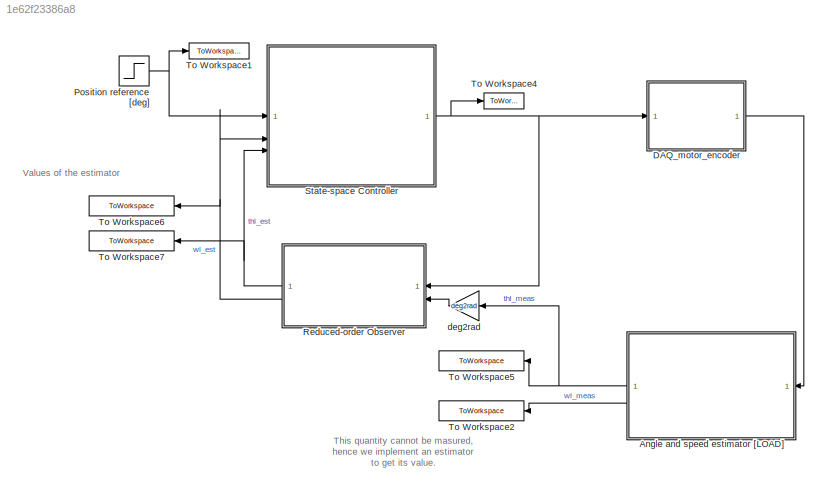
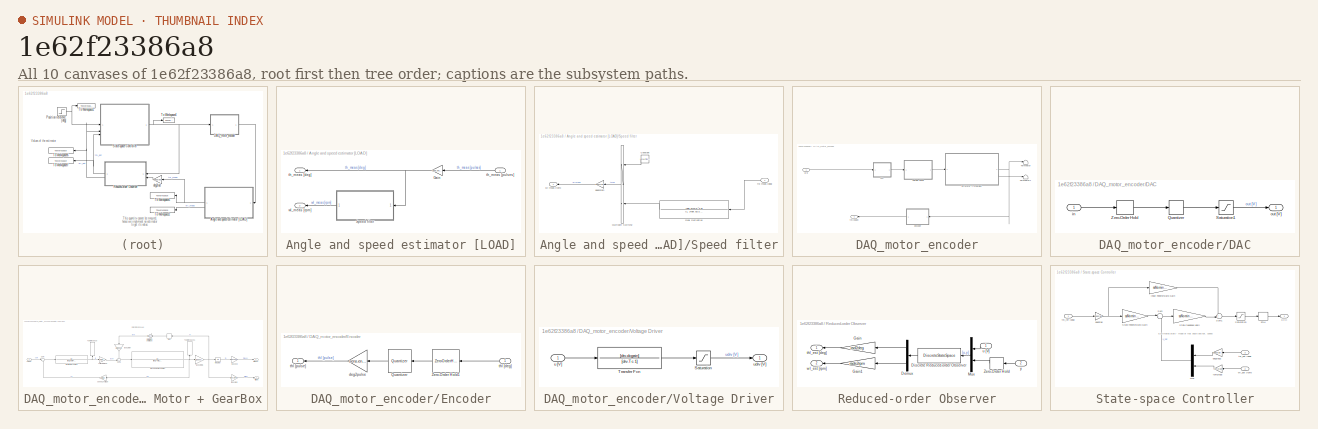
[diagram: thumbnail index - all 10 canvases of the model, root first then tree order]
MODEL slx_1e62f23386a8
KIND model
CONFIG AbsTol = auto
CONFIG EnableMultiTasking = off
CONFIG FixedStep = auto
CONFIG MaxStep = auto
CONFIG MinStep = auto
CONFIG RelTol = 1e-3
CONFIG SampleTimeConstraint = Unconstrained
CONFIG SolverName = VariableStepAuto
CONFIG StartTime = 0.0
CONFIG StopTime = 10.0
BLOCK [SubSystem] Angle and speed estimator [LOAD]
  NameLocation = top
BLOCK [Gain] Angle and speed estimator [LOAD]/Gain
  Gain = sens.enc.pulse2deg
  NameLocation = top
BLOCK [SubSystem] Angle and speed estimator [LOAD]/Speed filter
  NameLocation = top
BLOCK [Constant] Angle and speed estimator [LOAD]/Speed filter/Constant
  NameLocation = top
  Value = simul.filtselect
BLOCK [MultiPortSwitch] Angle and speed estimator [LOAD]/Speed filter/Multiport Switch2
  InputSameDT = off
  Inputs = 2
  NameLocation = top
  SaturateOnIntegerOverflow = off
BLOCK [TransferFcn] Angle and speed estimator [LOAD]/Speed filter/Real Derivative
  Denominator = [1, 2*der.dSS*der.wcSS, der.wcSS^2]
  NameLocation = top
  Numerator = [der.wcSS^2 0]
BLOCK [Gain] Angle and speed estimator [LOAD]/Speed filter/degs2rpm
  Gain = degs2rpm
BLOCK [Inport] Angle and speed estimator [LOAD]/Speed filter/thl-meas [deg]
BLOCK [Outport] Angle and speed estimator [LOAD]/Speed filter/wl-meas [rpm]
BLOCK [Outport] Angle and speed estimator [LOAD]/th_meas [deg]
BLOCK [Inport] Angle and speed estimator [LOAD]/th_meas [pulses]
  NameLocation = top
BLOCK [Outport] Angle and speed estimator [LOAD]/wl_meas [rpm]
  Port = 2
BLOCK [SubSystem] DAQ_motor_encoder
BLOCK [SubSystem] DAQ_motor_encoder/DAC
BLOCK [Quantizer] DAQ_motor_encoder/DAC/Quantizer
  QuantizationInterval = daq.dac.q
BLOCK [Saturate] DAQ_motor_encoder/DAC/Saturation1
  LowerLimit = -10
  UpperLimit = 10
BLOCK [ZeroOrderHold] DAQ_motor_encoder/DAC/Zero-Order Hold
  SampleTime = 0.001
BLOCK [Inport] DAQ_motor_encoder/DAC/in
BLOCK [Outport] DAQ_motor_encoder/DAC/out [V]
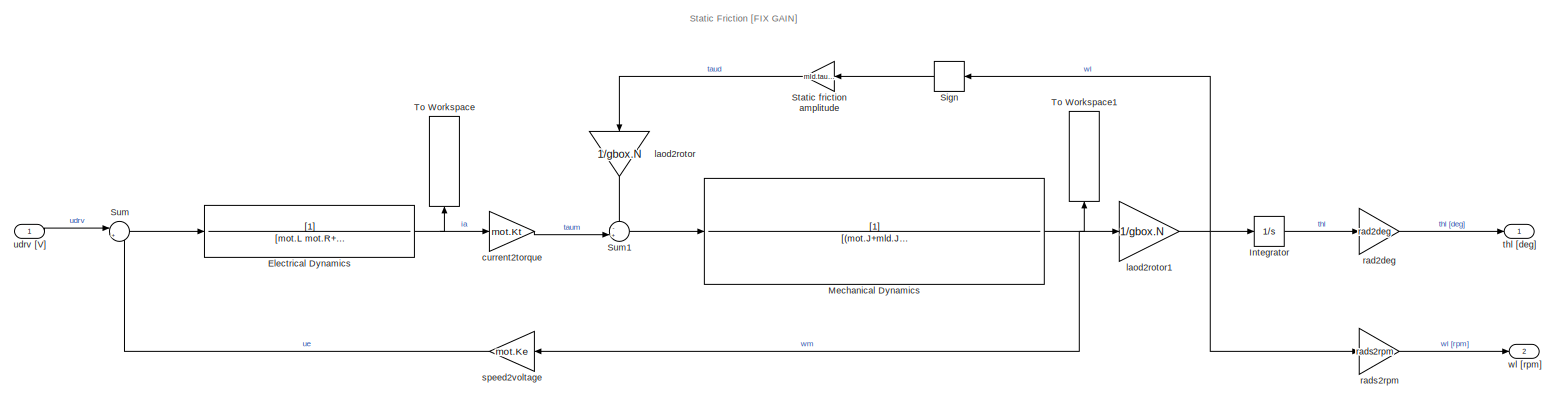
[diagram: DAQ_motor_encoder/DC Motor + GearBox - part 1/1, most of the canvas]
BLOCK [SubSystem] DAQ_motor_encoder/DC Motor + GearBox
BLOCK [TransferFcn] DAQ_motor_encoder/DC Motor + GearBox/Electrical Dynamics
  Denominator = [mot.L mot.R+sens.curr.Rs]
BLOCK [Integrator] DAQ_motor_encoder/DC Motor + GearBox/Integrator
BLOCK [TransferFcn] DAQ_motor_encoder/DC Motor + GearBox/Mechanical Dynamics
  Denominator = [(mot.J+mld.J/gbox.N^2) (mot.B+mld.B/gbox.N^2)]
BLOCK [Signum] DAQ_motor_encoder/DC Motor + GearBox/Sign
  NameLocation = top
  ZeroCross = off
BLOCK [Gain] DAQ_motor_encoder/DC Motor + GearBox/Static friction amplitude
  Gain = mld.tausf
  NameLocation = top
BLOCK [Sum] DAQ_motor_encoder/DC Motor + GearBox/Sum
  Inputs = |+-
BLOCK [Sum] DAQ_motor_encoder/DC Motor + GearBox/Sum1
  Inputs = -+|
BLOCK [ToWorkspace] DAQ_motor_encoder/DC Motor + GearBox/To Workspace
  FixptAsFi = on
  MaxDataPoints = inf
  NameLocation = right
  SampleTime = -1
  SaveFormat = Timeseries
  VariableName = ia
BLOCK [ToWorkspace] DAQ_motor_encoder/DC Motor + GearBox/To Workspace1
  FixptAsFi = on
  MaxDataPoints = inf
  NameLocation = right
  SampleTime = -1
  SaveFormat = Timeseries
  VariableName = wm
BLOCK [Gain] DAQ_motor_encoder/DC Motor + GearBox/current2torque
  Gain = mot.Kt
BLOCK [Gain] DAQ_motor_encoder/DC Motor + GearBox/laod2rotor
  Gain = 1/gbox.N
  NameLocation = left
BLOCK [Gain] DAQ_motor_encoder/DC Motor + GearBox/laod2rotor1
  Gain = 1/gbox.N
BLOCK [Gain] DAQ_motor_encoder/DC Motor + GearBox/rad2deg
  Gain = rad2deg
BLOCK [Gain] DAQ_motor_encoder/DC Motor + GearBox/rads2rpm
  Gain = rads2rpm
BLOCK [Gain] DAQ_motor_encoder/DC Motor + GearBox/speed2voltage
  Gain = mot.Ke
  NameLocation = top
BLOCK [Outport] DAQ_motor_encoder/DC Motor + GearBox/thl [deg]
BLOCK [Inport] DAQ_motor_encoder/DC Motor + GearBox/udrv [V]
BLOCK [Outport] DAQ_motor_encoder/DC Motor + GearBox/wl [rpm]
  Port = 2
BLOCK [SubSystem] DAQ_motor_encoder/Encoder
  NameLocation = top
BLOCK [Quantizer] DAQ_motor_encoder/Encoder/Quantizer
  NameLocation = top
  QuantizationInterval = sens.enc.pulse2deg
BLOCK [ZeroOrderHold] DAQ_motor_encoder/Encoder/Zero-Order Hold1
  NameLocation = top
  SampleTime = 0.001
BLOCK [Gain] DAQ_motor_encoder/Encoder/deg2pulse
  Gain = sens.enc.deg2pulse
BLOCK [Inport] DAQ_motor_encoder/Encoder/thl [deg]
BLOCK [Outport] DAQ_motor_encoder/Encoder/thl [pulse]
BLOCK [Terminator] DAQ_motor_encoder/Terminator
BLOCK [Terminator] DAQ_motor_encoder/Terminator1
BLOCK [SubSystem] DAQ_motor_encoder/Voltage Driver
BLOCK [Saturate] DAQ_motor_encoder/Voltage Driver/Saturation
  LowerLimit = -12
  UpperLimit = 12
BLOCK [TransferFcn] DAQ_motor_encoder/Voltage Driver/Transfer Fcn
  Denominator = [drv.Tc 1]
  Numerator = [drv.dcgain]
BLOCK [Inport] DAQ_motor_encoder/Voltage Driver/u [V]
BLOCK [Outport] DAQ_motor_encoder/Voltage Driver/udrv [V]
BLOCK [Outport] DAQ_motor_encoder/thl [pulse]
BLOCK [Inport] DAQ_motor_encoder/u[V]
BLOCK [Step] Position reference [deg]
  After = simul.stepdeg
BLOCK [SubSystem] Reduced-order Observer
  NameLocation = top
BLOCK [Demux] Reduced-order Observer/Demux
  NameLocation = top
  Outputs = 2
BLOCK [DiscreteStateSpace] Reduced-order Observer/Discrete Reduced-order Observer
  A = redObs.Ph0
  B = redObs.Gamma0
  C = redObs.H0
  D = redObs.J0
  SampleTime = T(simul.Ts_selector)
BLOCK [Gain] Reduced-order Observer/Gain
  Gain = rad2deg
BLOCK [Gain] Reduced-order Observer/Gain1
  Gain = rads2rpm
BLOCK [Mux] Reduced-order Observer/Mux
  DisplayOption = bar
  Inputs = 2
  NameLocation = top
BLOCK [ZeroOrderHold] Reduced-order Observer/Zero-Order Hold
  SampleTime = T(simul.Ts_selector)
BLOCK [Outport] Reduced-order Observer/thl_est [deg]
BLOCK [Inport] Reduced-order Observer/u [V]
BLOCK [Outport] Reduced-order Observer/wl_est [rpm]
  Port = 2
BLOCK [Inport] Reduced-order Observer/y
  Port = 2
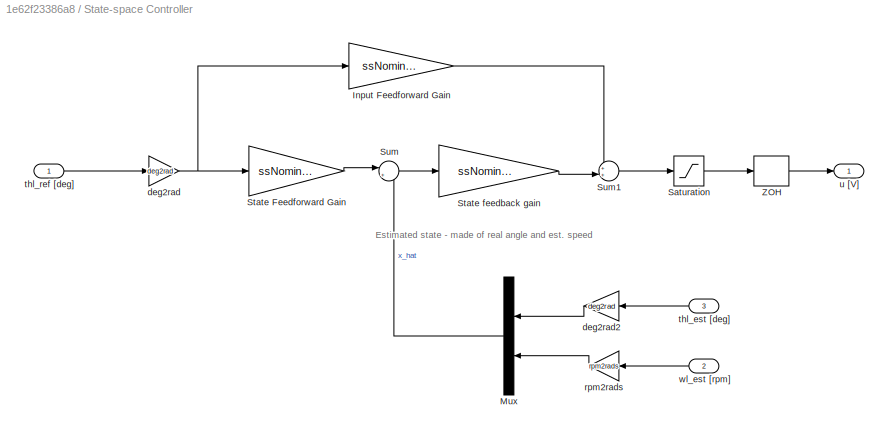
BLOCK [SubSystem] State-space Controller
BLOCK [Gain] State-space Controller/Input Feedforward Gain
  Gain = ssNominal.Nu
BLOCK [Mux] State-space Controller/Mux
  DisplayOption = signals
  Inputs = 2
  NameLocation = top
BLOCK [Saturate] State-space Controller/Saturation
  LowerLimit = -10
  UpperLimit = 10
BLOCK [Gain] State-space Controller/State Feedforward Gain
  Gain = ssNominal.Nx
BLOCK [Gain] State-space Controller/State feedback gain
  Gain = ssNominal.K
  Multiplication = Matrix(K*u)
BLOCK [Sum] State-space Controller/Sum
  Inputs = |+-
BLOCK [Sum] State-space Controller/Sum1
  Inputs = ++|
BLOCK [ZeroOrderHold] State-space Controller/ZOH 
  SampleTime = T(simul.Ts_selector)
BLOCK [Gain] State-space Controller/deg2rad
  Gain = deg2rad
BLOCK [Gain] State-space Controller/deg2rad2
  Gain = deg2rad
  NameLocation = top
BLOCK [Gain] State-space Controller/rpm2rads
  Gain = rpm2rads
  NameLocation = top
BLOCK [Inport] State-space Controller/thl_est [deg]
  NameLocation = top
  Port = 3
BLOCK [Inport] State-space Controller/thl_ref [deg]
BLOCK [Outport] State-space Controller/u [V]
BLOCK [Inport] State-space Controller/wl_est [rpm]
  NameLocation = top
  Port = 2
BLOCK [ToWorkspace] To Workspace1
  FixptAsFi = on
  MaxDataPoints = inf
  SampleTime = Ts
  SaveFormat = Structure With Time
  VariableName = thref
BLOCK [ToWorkspace] To Workspace2
  FixptAsFi = on
  MaxDataPoints = inf
  NameLocation = top
  SampleTime = Ts
  SaveFormat = Structure With Time
  VariableName = wl_meas
BLOCK [ToWorkspace] To Workspace4
  FixptAsFi = on
  MaxDataPoints = inf
  SampleTime = Ts
  SaveFormat = Structure With Time
  VariableName = u
BLOCK [ToWorkspace] To Workspace5
  FixptAsFi = on
  MaxDataPoints = inf
  NameLocation = top
  SampleTime = Ts
  SaveFormat = Structure With Time
  VariableName = thl_meas
BLOCK [ToWorkspace] To Workspace6
  FixptAsFi = on
  MaxDataPoints = inf
  NameLocation = top
  SampleTime = Ts
  SaveFormat = Structure With Time
  VariableName = wl_est
BLOCK [ToWorkspace] To Workspace7
  FixptAsFi = on
  MaxDataPoints = inf
  NameLocation = top
  SampleTime = Ts
  SaveFormat = Structure With Time
  VariableName = thl_est
BLOCK [Gain] deg2rad
  Gain = deg2rad
ANNOTATION (root): This quantity cannot be masured, hence we implement an estimator to get its value.
ANNOTATION (root): Values of the estimator
ANNOTATION DAQ_motor_encoder/DC Motor + GearBox: Static Friction [FIX GAIN]
ANNOTATION State-space Controller: Estimated state - made of real angle and est. speed
NET Angle and speed estimator [LOAD]/Gain:1 -> Angle and speed estimator [LOAD]/Speed filter:1, Angle and speed estimator [LOAD]/th_meas [deg]:1
LINE Angle and speed estimator [LOAD]/Speed filter/Constant:1 -> Angle and speed estimator [LOAD]/Speed filter/Multiport Switch2:1
LINE Angle and speed estimator [LOAD]/Speed filter/Multiport Switch2:1 -> Angle and speed estimator [LOAD]/Speed filter/degs2rpm:1
LINE Angle and speed estimator [LOAD]/Speed filter/Real Derivative:1 -> Angle and speed estimator [LOAD]/Speed filter/Multiport Switch2:3
LINE Angle and speed estimator [LOAD]/Speed filter/degs2rpm:1 -> Angle and speed estimator [LOAD]/Speed filter/wl-meas [rpm]:1
LINE Angle and speed estimator [LOAD]/Speed filter/thl-meas [deg]:1 -> Angle and speed estimator [LOAD]/Speed filter/Real Derivative:1
LINE Angle and speed estimator [LOAD]/Speed filter:1 -> Angle and speed estimator [LOAD]/wl_meas [rpm]:1
LINE Angle and speed estimator [LOAD]/th_meas [pulses]:1 -> Angle and speed estimator [LOAD]/Gain:1
NET Angle and speed estimator [LOAD]:1 -> To Workspace5:1, deg2rad:1
LINE Angle and speed estimator [LOAD]:2 -> To Workspace2:1
LINE DAQ_motor_encoder/DAC/Quantizer:1 -> DAQ_motor_encoder/DAC/Saturation1:1
LINE DAQ_motor_encoder/DAC/Saturation1:1 -> DAQ_motor_encoder/DAC/out [V]:1
LINE DAQ_motor_encoder/DAC/Zero-Order Hold:1 -> DAQ_motor_encoder/DAC/Quantizer:1
LINE DAQ_motor_encoder/DAC/in:1 -> DAQ_motor_encoder/DAC/Zero-Order Hold:1
LINE DAQ_motor_encoder/DAC:1 -> DAQ_motor_encoder/Voltage Driver:1
NET DAQ_motor_encoder/DC Motor + GearBox/Electrical Dynamics:1 -> DAQ_motor_encoder/DC Motor + GearBox/To Workspace:1, DAQ_motor_encoder/DC Motor + GearBox/current2torque:1
LINE DAQ_motor_encoder/DC Motor + GearBox/Integrator:1 -> DAQ_motor_encoder/DC Motor + GearBox/rad2deg:1
NET DAQ_motor_encoder/DC Motor + GearBox/Mechanical Dynamics:1 -> DAQ_motor_encoder/DC Motor + GearBox/To Workspace1:1, DAQ_motor_encoder/DC Motor + GearBox/laod2rotor1:1, DAQ_motor_encoder/DC Motor + GearBox/speed2voltage:1
LINE DAQ_motor_encoder/DC Motor + GearBox/Sign:1 -> DAQ_motor_encoder/DC Motor + GearBox/Static friction amplitude:1
LINE DAQ_motor_encoder/DC Motor + GearBox/Static friction amplitude:1 -> DAQ_motor_encoder/DC Motor + GearBox/laod2rotor:1
LINE DAQ_motor_encoder/DC Motor + GearBox/Sum1:1 -> DAQ_motor_encoder/DC Motor + GearBox/Mechanical Dynamics:1
LINE DAQ_motor_encoder/DC Motor + GearBox/Sum:1 -> DAQ_motor_encoder/DC Motor + GearBox/Electrical Dynamics:1
LINE DAQ_motor_encoder/DC Motor + GearBox/current2torque:1 -> DAQ_motor_encoder/DC Motor + GearBox/Sum1:2
NET DAQ_motor_encoder/DC Motor + GearBox/laod2rotor1:1 -> DAQ_motor_encoder/DC Motor + GearBox/Integrator:1, DAQ_motor_encoder/DC Motor + GearBox/Sign:1, DAQ_motor_encoder/DC Motor + GearBox/rads2rpm:1
LINE DAQ_motor_encoder/DC Motor + GearBox/laod2rotor:1 -> DAQ_motor_encoder/DC Motor + GearBox/Sum1:1
LINE DAQ_motor_encoder/DC Motor + GearBox/rad2deg:1 -> DAQ_motor_encoder/DC Motor + GearBox/thl [deg]:1
LINE DAQ_motor_encoder/DC Motor + GearBox/rads2rpm:1 -> DAQ_motor_encoder/DC Motor + GearBox/wl [rpm]:1
LINE DAQ_motor_encoder/DC Motor + GearBox/speed2voltage:1 -> DAQ_motor_encoder/DC Motor + GearBox/Sum:2
LINE DAQ_motor_encoder/DC Motor + GearBox/udrv [V]:1 -> DAQ_motor_encoder/DC Motor + GearBox/Sum:1
NET DAQ_motor_encoder/DC Motor + GearBox:1 -> DAQ_motor_encoder/Encoder:1, DAQ_motor_encoder/Terminator:1
LINE DAQ_motor_encoder/DC Motor + GearBox:2 -> DAQ_motor_encoder/Terminator1:1
LINE DAQ_motor_encoder/Encoder/Quantizer:1 -> DAQ_motor_encoder/Encoder/deg2pulse:1
LINE DAQ_motor_encoder/Encoder/Zero-Order Hold1:1 -> DAQ_motor_encoder/Encoder/Quantizer:1
LINE DAQ_motor_encoder/Encoder/deg2pulse:1 -> DAQ_motor_encoder/Encoder/thl [pulse]:1
LINE DAQ_motor_encoder/Encoder/thl [deg]:1 -> DAQ_motor_encoder/Encoder/Zero-Order Hold1:1
LINE DAQ_motor_encoder/Encoder:1 -> DAQ_motor_encoder/thl [pulse]:1
LINE DAQ_motor_encoder/Voltage Driver/Saturation:1 -> DAQ_motor_encoder/Voltage Driver/udrv [V]:1
LINE DAQ_motor_encoder/Voltage Driver/Transfer Fcn:1 -> DAQ_motor_encoder/Voltage Driver/Saturation:1
LINE DAQ_motor_encoder/Voltage Driver/u [V]:1 -> DAQ_motor_encoder/Voltage Driver/Transfer Fcn:1
LINE DAQ_motor_encoder/Voltage Driver:1 -> DAQ_motor_encoder/DC Motor + GearBox:1
LINE DAQ_motor_encoder/u[V]:1 -> DAQ_motor_encoder/DAC:1
LINE DAQ_motor_encoder:1 -> Angle and speed estimator [LOAD]:1
NET Position reference [deg]:1 -> State-space Controller:1, To Workspace1:1
LINE Reduced-order Observer/Demux:1 -> Reduced-order Observer/Gain:1
LINE Reduced-order Observer/Demux:2 -> Reduced-order Observer/Gain1:1
LINE Reduced-order Observer/Discrete Reduced-order Observer:1 -> Reduced-order Observer/Demux:1
LINE Reduced-order Observer/Gain1:1 -> Reduced-order Observer/wl_est [rpm]:1
LINE Reduced-order Observer/Gain:1 -> Reduced-order Observer/thl_est [deg]:1
LINE Reduced-order Observer/Mux:1 -> Reduced-order Observer/Discrete Reduced-order Observer:1
LINE Reduced-order Observer/Zero-Order Hold:1 -> Reduced-order Observer/Mux:2
LINE Reduced-order Observer/u [V]:1 -> Reduced-order Observer/Mux:1
LINE Reduced-order Observer/y:1 -> Reduced-order Observer/Zero-Order Hold:1
NET Reduced-order Observer:1 -> State-space Controller:3, To Workspace7:1
NET Reduced-order Observer:2 -> State-space Controller:2, To Workspace6:1
LINE State-space Controller/Input Feedforward Gain:1 -> State-space Controller/Sum1:1
LINE State-space Controller/Mux:1 -> State-space Controller/Sum:2
LINE State-space Controller/Saturation:1 -> State-space Controller/ZOH :1
LINE State-space Controller/State Feedforward Gain:1 -> State-space Controller/Sum:1
LINE State-space Controller/State feedback gain:1 -> State-space Controller/Sum1:2
LINE State-space Controller/Sum1:1 -> State-space Controller/Saturation:1
LINE State-space Controller/Sum:1 -> State-space Controller/State feedback gain:1
LINE State-space Controller/ZOH :1 -> State-space Controller/u [V]:1
LINE State-space Controller/deg2rad2:1 -> State-space Controller/Mux:1
NET State-space Controller/deg2rad:1 -> State-space Controller/Input Feedforward Gain:1, State-space Controller/State Feedforward Gain:1
LINE State-space Controller/rpm2rads:1 -> State-space Controller/Mux:2
LINE State-space Controller/thl_est [deg]:1 -> State-space Controller/deg2rad2:1
LINE State-space Controller/thl_ref [deg]:1 -> State-space Controller/deg2rad:1
LINE State-space Controller/wl_est [rpm]:1 -> State-space Controller/rpm2rads:1
NET State-space Controller:1 -> DAQ_motor_encoder:1, Reduced-order Observer:1, To Workspace4:1
LINE deg2rad:1 -> Reduced-order Observer:2
note: NET lines group one-source signal fan-out (src -> all destinations, sorted); 1:1 wires keep LINE
